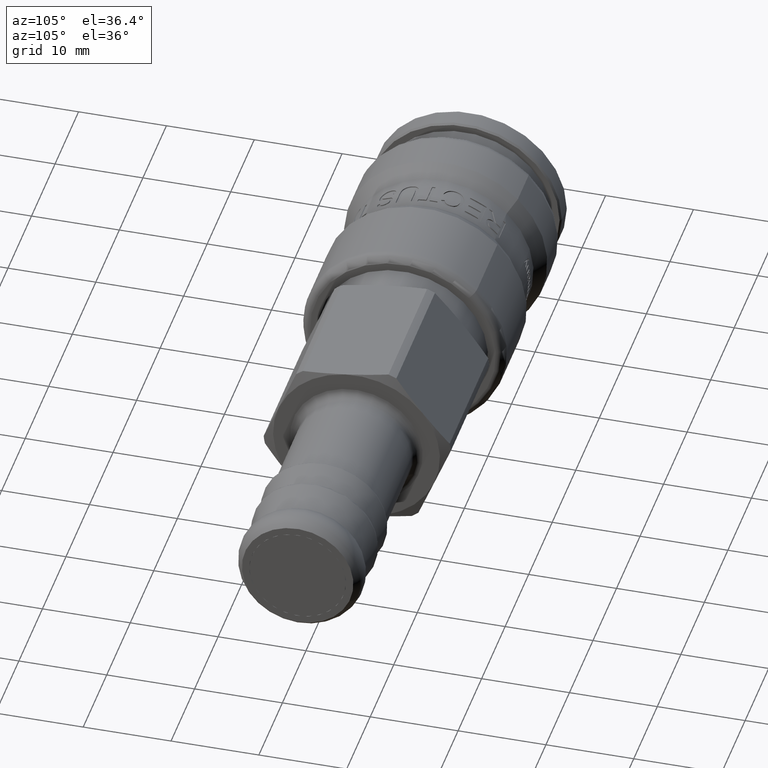
[diagram: clean part render]
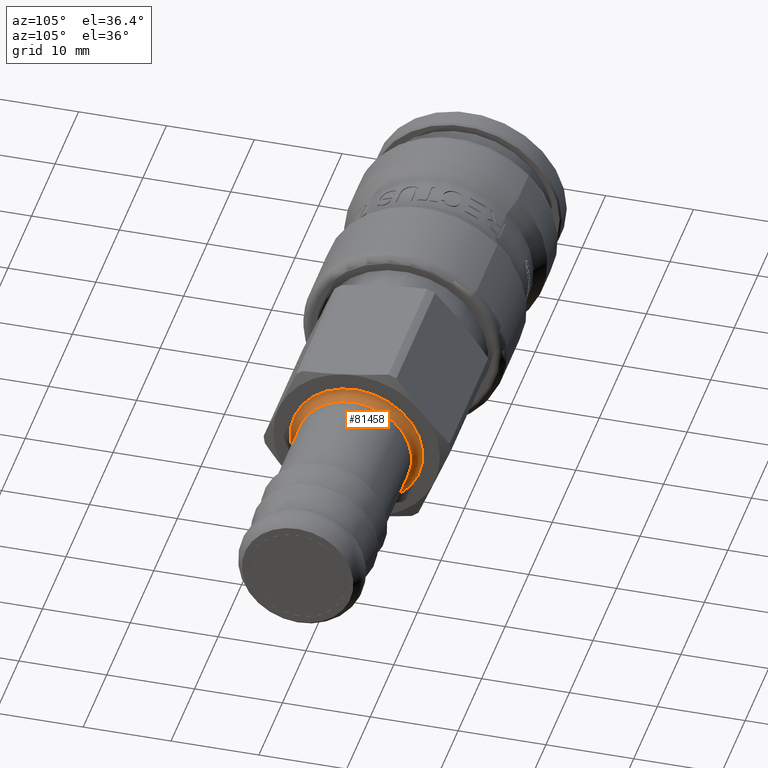
[diagram: same view with one face highlighted and labeled with its STEP entity id]
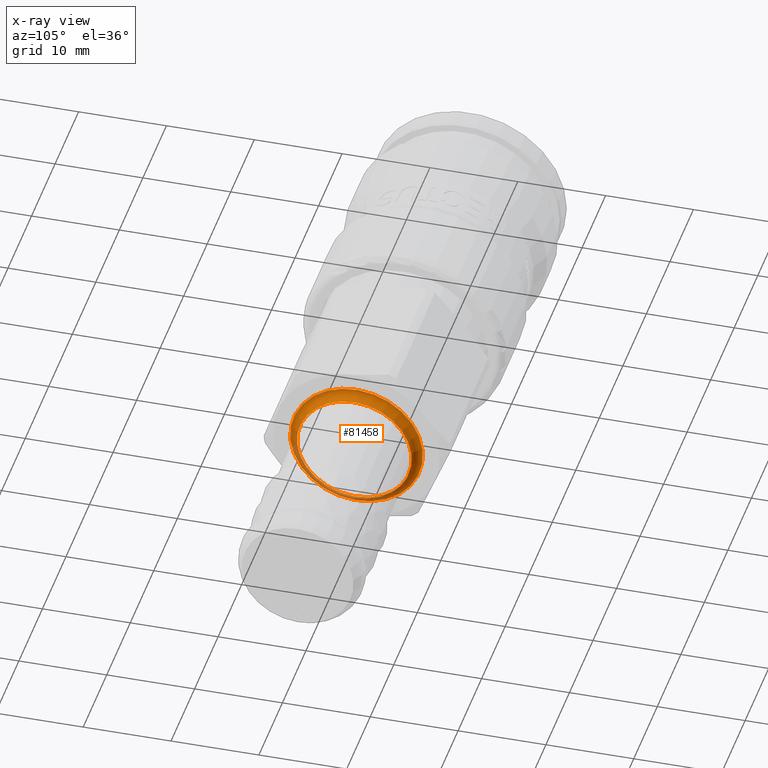
[diagram: x-ray of the same camera — body ghosted, the highlighted face saturated]
A machine part, auxiliary view. The second image highlights one B-rep face of the part: STEP entity #81458.
The next image is the same camera in x-ray: the body ghosted, the highlighted face saturated — about 17% of this face is hidden behind the body in this view.
In plain terms, the highlighted toroidal blend (fillet) surface has major radius 7.55 mm and minor (blend) radius 1 mm.
Its self-contained STEP definition (entity closure, byte-faithful):
#81431=CARTESIAN_POINT('',(49.500000000000014,9.429504E-015,-2.366583E-030));
#81432=DIRECTION('',(-1.0,3.928960E-016,-9.860761E-032));
#81433=DIRECTION('',(1.471610E-016,0.374554700766694,0.927204818868826));
#81434=AXIS2_PLACEMENT_3D('',#81431,#81432,#81433);
#81435=TOROIDAL_SURFACE('',#81434,7.55,1.0);
#81436=CARTESIAN_POINT('',(49.500000000000014,6.073191563590821,-2.453333290021844));
#81437=VERTEX_POINT('',#81436);
#81438=CARTESIAN_POINT('',(49.500000000000014,9.429504E-015,-2.366583E-030));
#81439=DIRECTION('',(-1.0,3.377761E-016,-1.364484E-016));
#81440=DIRECTION('',(-3.642951E-016,-0.927204818868826,0.374554700766694));
#81441=AXIS2_PLACEMENT_3D('',#81438,#81439,#81440);
#81442=CIRCLE('',#81441,6.550000000000001);
#81443=EDGE_CURVE('',#81437,#81437,#81442,.T.);
#81444=ORIENTED_EDGE('',*,*,#81443,.T.);
#81445=EDGE_LOOP('',(#81444));
#81446=FACE_OUTER_BOUND('',#81445,.T.);
#81447=CARTESIAN_POINT('',(48.500000000000014,7.000396382459648,-2.827887990788536));
#81448=VERTEX_POINT('',#81447);
#81449=CARTESIAN_POINT('',(48.500000000000007,9.822400E-015,-2.465190E-030));
#81450=DIRECTION('',(1.0,-3.377761E-016,1.364484E-016));
#81451=DIRECTION('',(-3.642951E-016,-0.927204818868826,0.374554700766694));
#81452=AXIS2_PLACEMENT_3D('',#81449,#81450,#81451);
#81453=CIRCLE('',#81452,7.550000000000001);
#81454=EDGE_CURVE('',#81448,#81448,#81453,.T.);
#81455=ORIENTED_EDGE('',*,*,#81454,.T.);
#81456=EDGE_LOOP('',(#81455));
#81457=FACE_BOUND('',#81456,.T.);
#81458=ADVANCED_FACE('',(#81446,#81457),#81435,.F.);